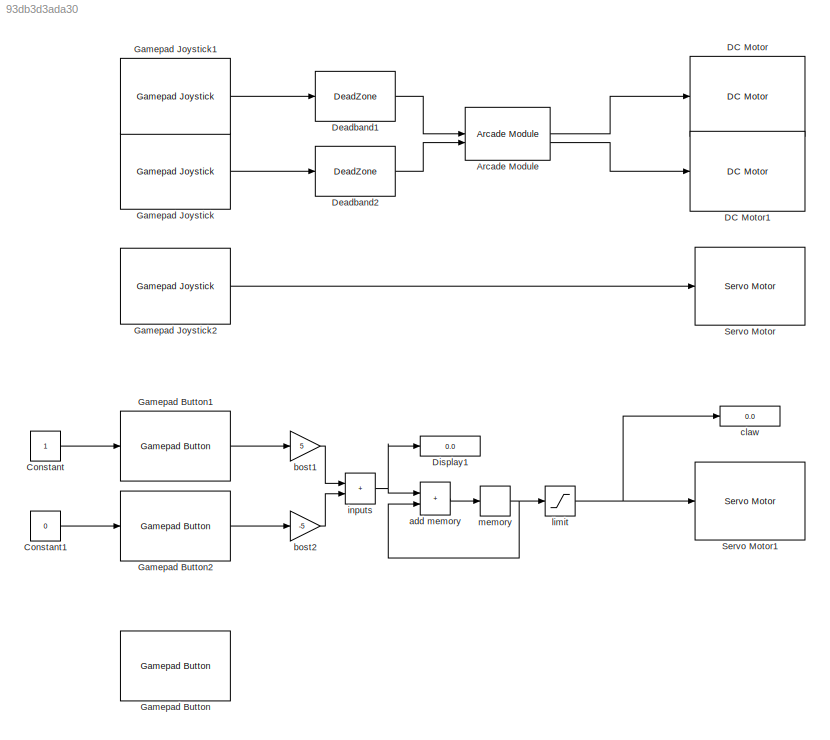
MODEL slx_93db3d3ada30
KIND model
CONFIG AbsTol = auto
CONFIG EnableMultiTasking = off
CONFIG FixedStep = auto
CONFIG MaxStep = auto
CONFIG MinStep = auto
CONFIG RelTol = 1e-3
CONFIG SampleTimeConstraint = Unconstrained
CONFIG SolverName = VariableStepAuto
CONFIG StartTime = 0.0
CONFIG StopTime = 10.0
BLOCK [Reference] Arcade Module  REF=vexcommonlib/Arcade Module
  LibrarySourceBlock = vexarmcortexlib/Utilities/Arcade Module
  SourceBlock = vexcommonlib/Arcade Module
  SourceType = Arcade-2 Motors Module
BLOCK [Constant] Constant
BLOCK [Constant] Constant1
  Value = 0
BLOCK [Reference] DC Motor  REF=vexarmcortexlib/Actuators/DC Motor
  SourceBlock = vexarmcortexlib/Actuators/DC Motor
  SourceType = DC Motor
BLOCK [Reference] DC Motor1  REF=vexarmcortexlib/Actuators/DC Motor
  SourceBlock = vexarmcortexlib/Actuators/DC Motor
  SourceType = DC Motor
BLOCK [DeadZone] Deadband1
BLOCK [DeadZone] Deadband2
BLOCK [Display] Display1
  Decimation = 1
BLOCK [Reference] Gamepad Button  REF=vexarmcortexlib/Gamepad/Gamepad Button
  SourceBlock = vexarmcortexlib/Gamepad/Gamepad Button
  SourceType = Gamepad Button
BLOCK [Reference] Gamepad Button1  REF=vexarmcortexlib/Gamepad/Gamepad Button
  SourceBlock = vexarmcortexlib/Gamepad/Gamepad Button
  SourceType = Gamepad Button
BLOCK [Reference] Gamepad Button2  REF=vexarmcortexlib/Gamepad/Gamepad Button
  SourceBlock = vexarmcortexlib/Gamepad/Gamepad Button
  SourceType = Gamepad Button
BLOCK [Reference] Gamepad Joystick  REF=vexarmcortexlib/Gamepad/Gamepad Joystick
  SourceBlock = vexarmcortexlib/Gamepad/Gamepad Joystick
  SourceType = Gamepad Joystick
BLOCK [Reference] Gamepad Joystick1  REF=vexarmcortexlib/Gamepad/Gamepad Joystick
  SourceBlock = vexarmcortexlib/Gamepad/Gamepad Joystick
  SourceType = Gamepad Joystick
BLOCK [Reference] Gamepad Joystick2  REF=vexarmcortexlib/Gamepad/Gamepad Joystick
  SourceBlock = vexarmcortexlib/Gamepad/Gamepad Joystick
  SourceType = Gamepad Joystick
BLOCK [Reference] Servo Motor  REF=vexarmcortexlib/Actuators/Servo Motor
  SourceBlock = vexarmcortexlib/Actuators/Servo Motor
  SourceType = Servo Motor
BLOCK [Reference] Servo Motor1  REF=vexarmcortexlib/Actuators/Servo Motor
  SourceBlock = vexarmcortexlib/Actuators/Servo Motor
  SourceType = Servo Motor
BLOCK [Sum] add memory
  IconShape = rectangular
BLOCK [Gain] bost1
  Gain = 5
BLOCK [Gain] bost2
  Gain = -5
BLOCK [Display] claw
  Decimation = 1
BLOCK [Sum] inputs
  IconShape = rectangular
BLOCK [Saturate] limit
  LowerLimit = -127
  UpperLimit = 127
BLOCK [Memory] memory
  InheritSampleTime = on
LINE Arcade Module:1 -> DC Motor:1
LINE Arcade Module:2 -> DC Motor1:1
LINE Constant1:1 -> Gamepad Button2:1
LINE Constant:1 -> Gamepad Button1:1
LINE Deadband1:1 -> Arcade Module:1
LINE Deadband2:1 -> Arcade Module:2
LINE Gamepad Button1:1 -> bost1:1
LINE Gamepad Button2:1 -> bost2:1
LINE Gamepad Joystick1:1 -> Deadband1:1
LINE Gamepad Joystick2:1 -> Servo Motor:1
LINE Gamepad Joystick:1 -> Deadband2:1
LINE add memory:1 -> memory:1
LINE bost1:1 -> inputs:1
LINE bost2:1 -> inputs:2
NET inputs:1 -> Display1:1, add memory:1
NET limit:1 -> Servo Motor1:1, claw:1
NET memory:1 -> add memory:2, limit:1
note: NET lines group one-source signal fan-out (src -> all destinations, sorted); 1:1 wires keep LINE
